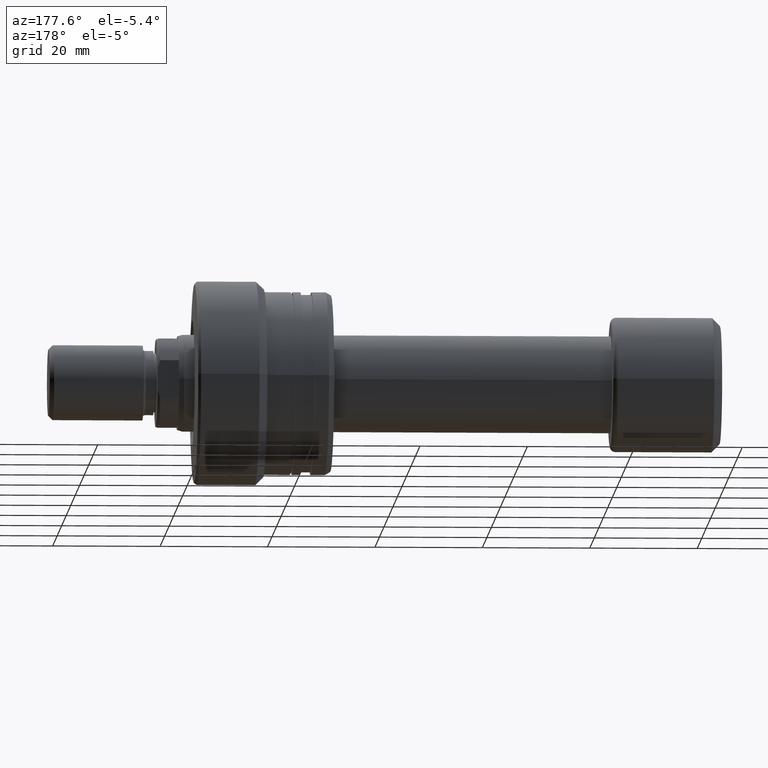
[diagram: clean part render]
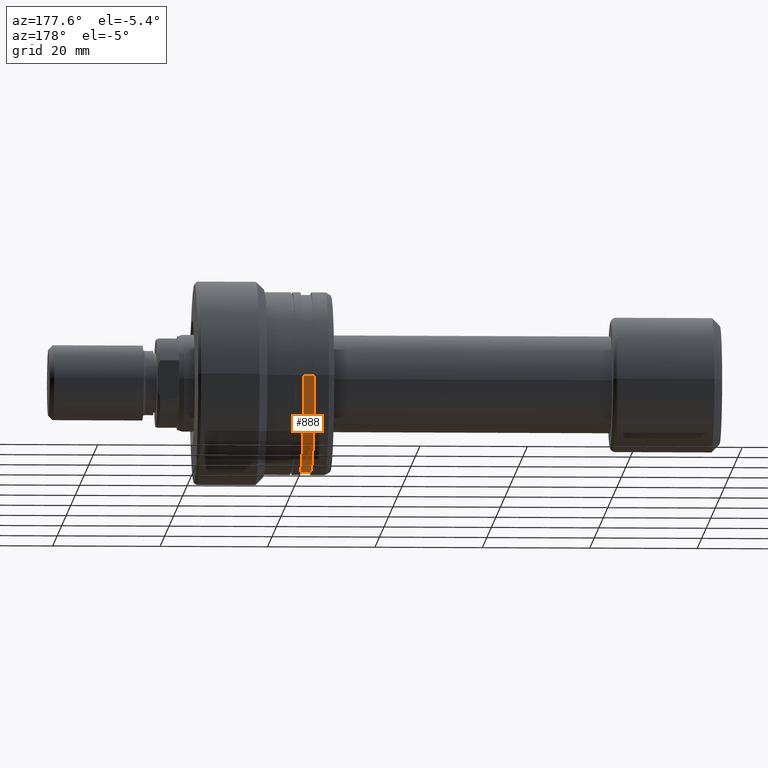
[diagram: same view with one face highlighted and labeled with its STEP entity id]
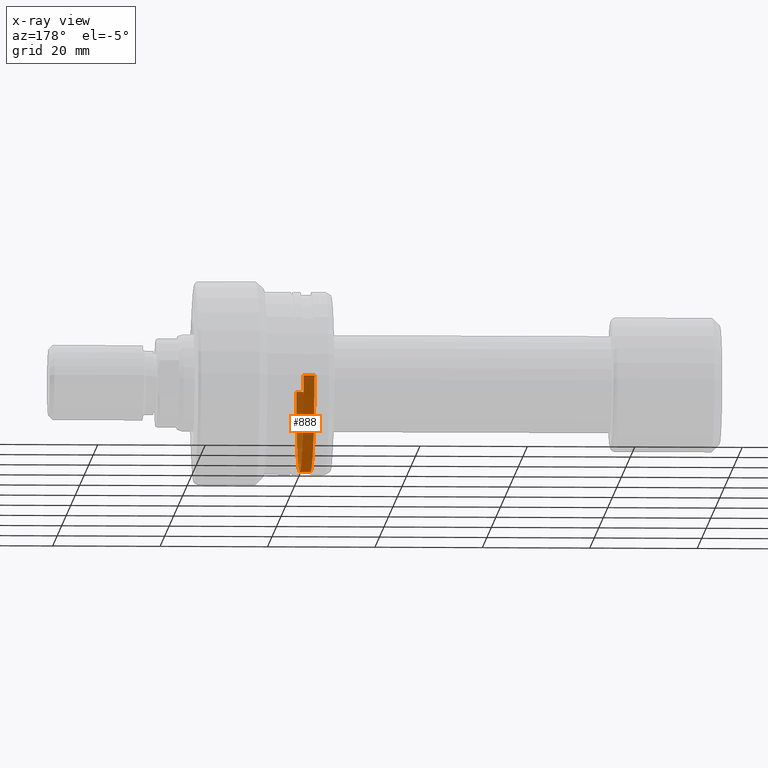
[diagram: x-ray of the same camera — body ghosted, the highlighted face saturated]
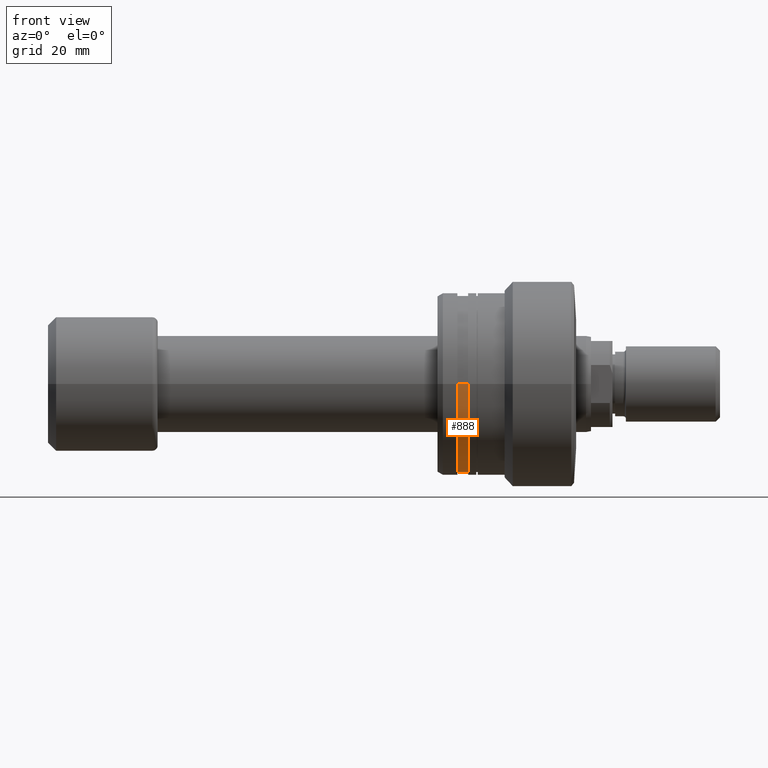
[diagram: same view with one face highlighted and labeled with its STEP entity id]
A machine part, auxiliary view. The second image highlights one B-rep face of the part: STEP entity #888.
The next image is the same camera in x-ray: the body ghosted, the highlighted face saturated — about 29% of this face is hidden behind the body in this view.
A second angle (front view) of the same face is appended — the face is thin or edge-on in the first view.
In plain terms, the highlighted cylindrical surface (partial cylindrical patch) has radius 16.5 mm, axis along (-1, 0, 0).
Its self-contained STEP definition (entity closure, byte-faithful):
#6 = DIRECTION ( 'NONE',  ( -1.000000000000000000, 9.810081908519753690E-16, -0.000000000000000000 ) ) ;
#163 = LINE ( 'NONE', #2602, #315 ) ;
#219 = LINE ( 'NONE', #238, #369 ) ;
#231 = CARTESIAN_POINT ( 'NONE',  ( -20.79999999999996874, 16.49999999999997868, 2.020667218593132311E-15 ) ) ;
#235 = AXIS2_PLACEMENT_3D ( 'NONE', #1574, #2470, #723 ) ;
#238 = CARTESIAN_POINT ( 'NONE',  ( -30.28002276692734185, -16.49999999999999289, 0.000000000000000000 ) ) ;
#315 = VECTOR ( 'NONE', #376, 1000.000000000000000 ) ;
#321 = EDGE_CURVE ( 'NONE', #826, #2775, #2049, .T. ) ;
#369 = VECTOR ( 'NONE', #1616, 1000.000000000000000 ) ;
#376 = DIRECTION ( 'NONE',  ( -1.000000000000000000, 9.810081908519753690E-16, -0.000000000000000000 ) ) ;
#430 = ORIENTED_EDGE ( 'NONE', *, *, #1803, .T. ) ;
#670 = VERTEX_POINT ( 'NONE', #231 ) ;
#721 = CYLINDRICAL_SURFACE ( 'NONE', #1774, 16.49999999999999289 ) ;
#723 = DIRECTION ( 'NONE',  ( -1.051347561198065599E-15, -1.000000000000000000, 0.000000000000000000 ) ) ;
#775 = ORIENTED_EDGE ( 'NONE', *, *, #1085, .F. ) ;
#826 = VERTEX_POINT ( 'NONE', #1543 ) ;
#888 = ADVANCED_FACE ( 'NONE', ( #2727 ), #721, .T. ) ;
#1085 = EDGE_CURVE ( 'NONE', #670, #826, #163, .T. ) ;
#1151 = DIRECTION ( 'NONE',  ( -1.051347561198065402E-15, -1.000000000000000000, 0.000000000000000000 ) ) ;
#1184 = DIRECTION ( 'NONE',  ( -1.000000000000000000, 9.810081908519753690E-16, -0.000000000000000000 ) ) ;
#1293 = AXIS2_PLACEMENT_3D ( 'NONE', #1530, #6, #1808 ) ;
#1530 = CARTESIAN_POINT ( 'NONE',  ( -22.80878161770236190, -7.329348763220012769E-15, 0.000000000000000000 ) ) ;
#1543 = CARTESIAN_POINT ( 'NONE',  ( -22.80878161770234414, 16.49999999999998579, 2.020667218593132311E-15 ) ) ;
#1562 = EDGE_LOOP ( 'NONE', ( #775, #2633, #430, #2577 ) ) ;
#1574 = CARTESIAN_POINT ( 'NONE',  ( -20.79999999999998650, -9.299979983818923869E-15, 0.000000000000000000 ) ) ;
#1609 = VERTEX_POINT ( 'NONE', #2384 ) ;
#1616 = DIRECTION ( 'NONE',  ( -1.000000000000000000, 9.810081908519753690E-16, -0.000000000000000000 ) ) ;
#1774 = AXIS2_PLACEMENT_3D ( 'NONE', #2111, #1184, #1151 ) ;
#1803 = EDGE_CURVE ( 'NONE', #1609, #2775, #219, .T. ) ;
#1808 = DIRECTION ( 'NONE',  ( -1.051347561198065402E-15, -1.000000000000000000, 0.000000000000000000 ) ) ;
#2049 = CIRCLE ( 'NONE', #1293, 16.49999999999999289 ) ;
#2111 = CARTESIAN_POINT ( 'NONE',  ( -30.28002276692732408, 0.000000000000000000, 0.000000000000000000 ) ) ;
#2376 = EDGE_CURVE ( 'NONE', #670, #1609, #2393, .T. ) ;
#2384 = CARTESIAN_POINT ( 'NONE',  ( -20.80000000000000426, -16.50000000000000000, 0.000000000000000000 ) ) ;
#2393 = CIRCLE ( 'NONE', #235, 16.49999999999998934 ) ;
#2470 = DIRECTION ( 'NONE',  ( -1.000000000000000000, 9.810081908519753690E-16, -0.000000000000000000 ) ) ;
#2577 = ORIENTED_EDGE ( 'NONE', *, *, #321, .F. ) ;
#2602 = CARTESIAN_POINT ( 'NONE',  ( -30.28002276692730632, 16.49999999999999289, 2.020667218593132311E-15 ) ) ;
#2633 = ORIENTED_EDGE ( 'NONE', *, *, #2376, .T. ) ;
#2704 = CARTESIAN_POINT ( 'NONE',  ( -22.80878161770237966, -16.50000000000000000, 0.000000000000000000 ) ) ;
#2727 = FACE_OUTER_BOUND ( 'NONE', #1562, .T. ) ;
#2775 = VERTEX_POINT ( 'NONE', #2704 ) ;